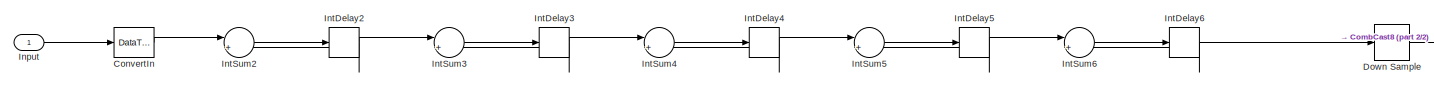
[diagram: root canvas - part 1/2, middle left region]
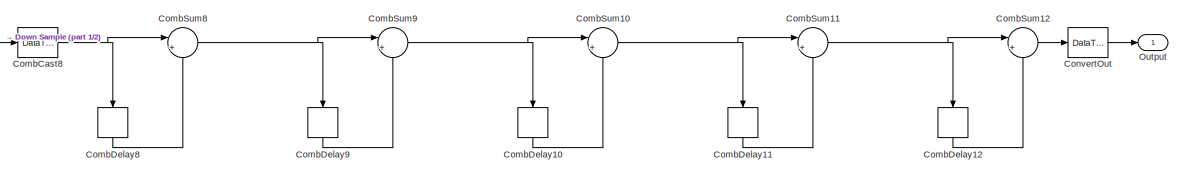
[diagram: root canvas - part 2/2, right side, full height]
MODEL slx_7b36c996d6d1
KIND model
CONFIG AbsTol = auto
CONFIG EnableMultiTasking = off
CONFIG FixedStep = auto
CONFIG MaxStep = auto
CONFIG MinStep = auto
CONFIG RelTol = 1e-3
CONFIG SampleTimeConstraint = Unconstrained
CONFIG Solver = VariableStepAuto
CONFIG SolverName = VariableStepAuto
CONFIG StartTime = 0.0
CONFIG StopTime = 10.0
BLOCK [DataTypeConversion] CombCast8
  OutDataTypeStr = fixdt(1,41,15)
  RndMeth = Floor
  SaturateOnIntegerOverflow = off
BLOCK [Delay] CombDelay10
  DelayLength = 1
  InitialCondition = 0
  InputPortMap = u0
  Ports = [1, 1]
BLOCK [Delay] CombDelay11
  DelayLength = 1
  InitialCondition = 0
  InputPortMap = u0
  Ports = [1, 1]
BLOCK [Delay] CombDelay12
  DelayLength = 1
  InitialCondition = 0
  InputPortMap = u0
  Ports = [1, 1]
BLOCK [Delay] CombDelay8
  DelayLength = 1
  InitialCondition = 0
  InputPortMap = u0
  Ports = [1, 1]
BLOCK [Delay] CombDelay9
  DelayLength = 1
  InitialCondition = 0
  InputPortMap = u0
  Ports = [1, 1]
BLOCK [Sum] CombSum10
  AccumDataTypeStr = fixdt(1,41,15)
  IconShape = round
  InputSameDT = off
  Inputs = |+-
  OutDataTypeStr = fixdt(1,41,15)
  Ports = [2, 1]
  SaturateOnIntegerOverflow = off
BLOCK [Sum] CombSum11
  AccumDataTypeStr = fixdt(1,41,15)
  IconShape = round
  InputSameDT = off
  Inputs = |+-
  OutDataTypeStr = fixdt(1,41,15)
  Ports = [2, 1]
  SaturateOnIntegerOverflow = off
BLOCK [Sum] CombSum12
  AccumDataTypeStr = fixdt(1,41,15)
  IconShape = round
  InputSameDT = off
  Inputs = |+-
  OutDataTypeStr = fixdt(1,41,15)
  Ports = [2, 1]
  SaturateOnIntegerOverflow = off
BLOCK [Sum] CombSum8
  AccumDataTypeStr = fixdt(1,41,15)
  IconShape = round
  InputSameDT = off
  Inputs = |+-
  OutDataTypeStr = fixdt(1,41,15)
  Ports = [2, 1]
  SaturateOnIntegerOverflow = off
BLOCK [Sum] CombSum9
  AccumDataTypeStr = fixdt(1,41,15)
  IconShape = round
  InputSameDT = off
  Inputs = |+-
  OutDataTypeStr = fixdt(1,41,15)
  Ports = [2, 1]
  SaturateOnIntegerOverflow = off
BLOCK [DataTypeConversion] ConvertIn
  OutDataTypeStr = fixdt(1,16,15)
  RndMeth = Nearest
BLOCK [DataTypeConversion] ConvertOut
  OutDataTypeStr = fixdt(1,41,15)
  RndMeth = Floor
  SaturateOnIntegerOverflow = off
BLOCK [DownSample] Down Sample
  InputProcessing = Elements as channels (sample based)
  N = 32
  RateOptions = Allow multirate processing
BLOCK [Inport] Input
  IconDisplay = Port number
BLOCK [Delay] IntDelay2
  DelayLength = 1
  InitialCondition = 0
  InputPortMap = u0
  Ports = [1, 1]
BLOCK [Delay] IntDelay3
  DelayLength = 1
  InitialCondition = 0
  InputPortMap = u0
  Ports = [1, 1]
BLOCK [Delay] IntDelay4
  DelayLength = 1
  InitialCondition = 0
  InputPortMap = u0
  Ports = [1, 1]
BLOCK [Delay] IntDelay5
  DelayLength = 1
  InitialCondition = 0
  InputPortMap = u0
  Ports = [1, 1]
BLOCK [Delay] IntDelay6
  DelayLength = 1
  InitialCondition = 0
  InputPortMap = u0
  Ports = [1, 1]
BLOCK [Sum] IntSum2
  AccumDataTypeStr = fixdt(1,41,15)
  IconShape = round
  InputSameDT = off
  Inputs = |++
  OutDataTypeStr = fixdt(1,41,15)
  Ports = [2, 1]
  SaturateOnIntegerOverflow = off
BLOCK [Sum] IntSum3
  AccumDataTypeStr = fixdt(1,41,15)
  IconShape = round
  InputSameDT = off
  Inputs = |++
  OutDataTypeStr = fixdt(1,41,15)
  Ports = [2, 1]
  SaturateOnIntegerOverflow = off
BLOCK [Sum] IntSum4
  AccumDataTypeStr = fixdt(1,41,15)
  IconShape = round
  InputSameDT = off
  Inputs = |++
  OutDataTypeStr = fixdt(1,41,15)
  Ports = [2, 1]
  SaturateOnIntegerOverflow = off
BLOCK [Sum] IntSum5
  AccumDataTypeStr = fixdt(1,41,15)
  IconShape = round
  InputSameDT = off
  Inputs = |++
  OutDataTypeStr = fixdt(1,41,15)
  Ports = [2, 1]
  SaturateOnIntegerOverflow = off
BLOCK [Sum] IntSum6
  AccumDataTypeStr = fixdt(1,41,15)
  IconShape = round
  InputSameDT = off
  Inputs = |++
  OutDataTypeStr = fixdt(1,41,15)
  Ports = [2, 1]
  SaturateOnIntegerOverflow = off
BLOCK [Outport] Output
  IconDisplay = Port number
  VectorParamsAs1DForOutWhenUnconnected = on
NET CombCast8:1 -> CombDelay8:1, CombSum8:1
LINE CombDelay10:1 -> CombSum10:2
LINE CombDelay11:1 -> CombSum11:2
LINE CombDelay12:1 -> CombSum12:2
LINE CombDelay8:1 -> CombSum8:2
LINE CombDelay9:1 -> CombSum9:2
NET CombSum10:1 -> CombDelay11:1, CombSum11:1
NET CombSum11:1 -> CombDelay12:1, CombSum12:1
LINE CombSum12:1 -> ConvertOut:1
NET CombSum8:1 -> CombDelay9:1, CombSum9:1
NET CombSum9:1 -> CombDelay10:1, CombSum10:1
LINE ConvertIn:1 -> IntSum2:1
LINE ConvertOut:1 -> Output:1
LINE Down Sample:1 -> CombCast8:1
LINE Input:1 -> ConvertIn:1
NET IntDelay2:1 -> IntSum2:2, IntSum3:1
NET IntDelay3:1 -> IntSum3:2, IntSum4:1
NET IntDelay4:1 -> IntSum4:2, IntSum5:1
NET IntDelay5:1 -> IntSum5:2, IntSum6:1
NET IntDelay6:1 -> Down Sample:1, IntSum6:2
LINE IntSum2:1 -> IntDelay2:1
LINE IntSum3:1 -> IntDelay3:1
LINE IntSum4:1 -> IntDelay4:1
LINE IntSum5:1 -> IntDelay5:1
LINE IntSum6:1 -> IntDelay6:1
note: NET lines group one-source signal fan-out (src -> all destinations, sorted); 1:1 wires keep LINE
